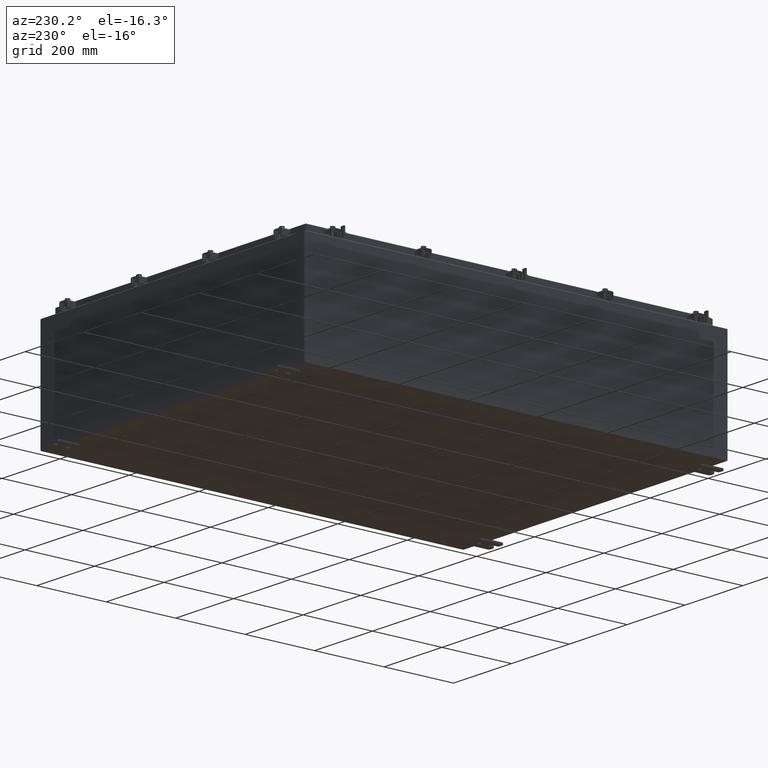
[diagram: clean part render]
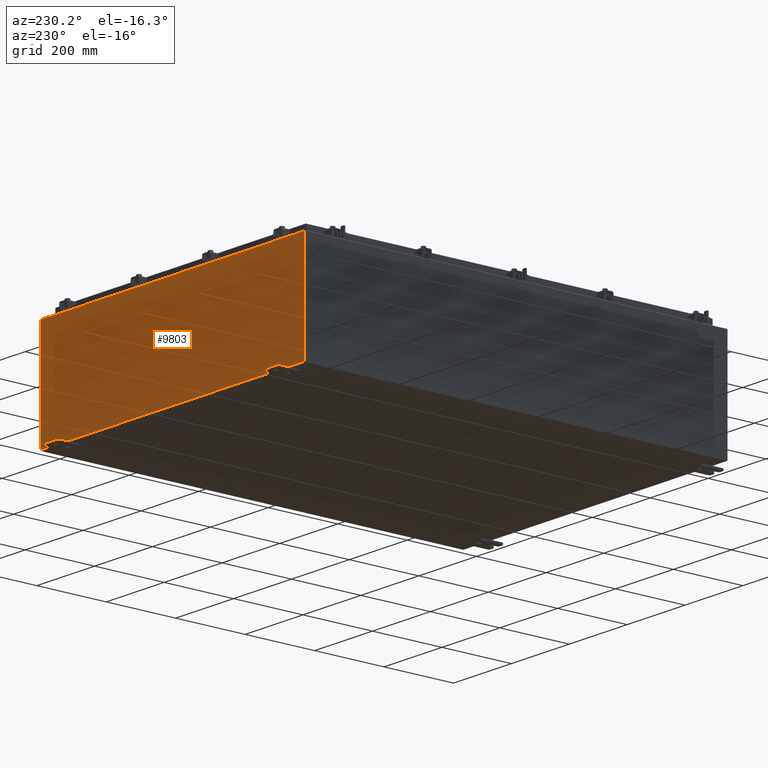
[diagram: same view with one face highlighted and labeled with its STEP entity id]
A machine part, auxiliary view. The second image highlights one B-rep face of the part: STEP entity #9803.
In plain terms, the highlighted planar face has unit normal (0, -1, 0).
Its self-contained STEP definition (entity closure, byte-faithful):
#366 = VECTOR ( 'NONE', #7278, 39.37007874015748100 ) ;
#612 = CARTESIAN_POINT ( 'NONE',  ( 16.65587500000000500, 0.0000000000000000000, 5.874949999999999200 ) ) ;
#710 = ORIENTED_EDGE ( 'NONE', *, *, #8746, .F. ) ;
#727 = DIRECTION ( 'NONE',  ( 0.0000000000000000000, 0.0000000000000000000, -1.000000000000000000 ) ) ;
#1106 = ORIENTED_EDGE ( 'NONE', *, *, #13340, .T. ) ;
#1410 = CARTESIAN_POINT ( 'NONE',  ( 17.92530000000000400, 0.0000000000000000000, -5.925300000000000000 ) ) ;
#1528 = CARTESIAN_POINT ( 'NONE',  ( -16.63720000000000000, -0.0000000000000000000, 5.874949999999999200 ) ) ;
#1589 = ORIENTED_EDGE ( 'NONE', *, *, #11027, .F. ) ;
#1881 = VECTOR ( 'NONE', #6784, 39.37007874015748100 ) ;
#2208 = EDGE_CURVE ( 'NONE', #23707, #24026, #16465, .T. ) ;
#2252 = DIRECTION ( 'NONE',  ( 0.0000000000000000000, 0.0000000000000000000, 1.000000000000000000 ) ) ;
#2704 = LINE ( 'NONE', #13110, #24450 ) ;
#2745 = DIRECTION ( 'NONE',  ( 0.0000000000000000000, 0.0000000000000000000, -1.000000000000000000 ) ) ;
#2846 = FACE_OUTER_BOUND ( 'NONE', #23994, .T. ) ;
#2865 = LINE ( 'NONE', #24416, #24620 ) ;
#3194 = DIRECTION ( 'NONE',  ( -0.0000000000000000000, 1.000000000000000000, -0.0000000000000000000 ) ) ;
#3524 = LINE ( 'NONE', #14888, #25238 ) ;
#4284 = CARTESIAN_POINT ( 'NONE',  ( -16.65587499999999800, 0.0000000000000000000, 5.874949999999999200 ) ) ;
#4611 = CARTESIAN_POINT ( 'NONE',  ( -17.92529999999999600, 0.0000000000000000000, 5.925299999999999100 ) ) ;
#4743 = DIRECTION ( 'NONE',  ( 1.000000000000000000, 0.0000000000000000000, 3.048036009064577000E-017 ) ) ;
#4830 = CARTESIAN_POINT ( 'NONE',  ( 16.63720000000000400, 0.0000000000000000000, 5.912299999999999200 ) ) ;
#4842 = CARTESIAN_POINT ( 'NONE',  ( 17.92530000000000400, 0.0000000000000000000, 5.925300000000000000 ) ) ;
#4887 = VECTOR ( 'NONE', #25931, 39.37007874015748100 ) ;
#4944 = LINE ( 'NONE', #7329, #9880 ) ;
#5199 = DIRECTION ( 'NONE',  ( 0.0000000000000000000, 0.0000000000000000000, 1.000000000000000000 ) ) ;
#5450 = VECTOR ( 'NONE', #20959, 39.37007874015748100 ) ;
#5677 = VERTEX_POINT ( 'NONE', #6756 ) ;
#6038 = LINE ( 'NONE', #19755, #366 ) ;
#6185 = CARTESIAN_POINT ( 'NONE',  ( -17.92529999999999600, 0.0000000000000000000, 5.925299999999999100 ) ) ;
#6491 = EDGE_CURVE ( 'NONE', #19774, #22085, #6038, .T. ) ;
#6531 = DIRECTION ( 'NONE',  ( 0.0000000000000000000, -0.0000000000000000000, -1.000000000000000000 ) ) ;
#6756 = CARTESIAN_POINT ( 'NONE',  ( 16.67455000000000400, 0.0000000000000000000, 5.874949999999999200 ) ) ;
#6784 = DIRECTION ( 'NONE',  ( -0.0000000000000000000, -0.0000000000000000000, 1.000000000000000000 ) ) ;
#7039 = LINE ( 'NONE', #15667, #17555 ) ;
#7278 = DIRECTION ( 'NONE',  ( 0.0000000000000000000, 0.0000000000000000000, -1.000000000000000000 ) ) ;
#7329 = CARTESIAN_POINT ( 'NONE',  ( 16.63720000000000400, 0.0000000000000000000, 0.0000000000000000000 ) ) ;
#7693 = LINE ( 'NONE', #24097, #18226 ) ;
#8146 = CARTESIAN_POINT ( 'NONE',  ( 16.67454999999949500, -0.0000000000000000000, -1.447541957108302900E-012 ) ) ;
#8304 = AXIS2_PLACEMENT_3D ( 'NONE', #23234, #19085, #6531 ) ;
#8746 = EDGE_CURVE ( 'NONE', #13276, #5677, #21995, .T. ) ;
#8777 = VERTEX_POINT ( 'NONE', #21815 ) ;
#9010 = VERTEX_POINT ( 'NONE', #26596 ) ;
#9287 = ORIENTED_EDGE ( 'NONE', *, *, #2208, .F. ) ;
#9791 = EDGE_CURVE ( 'NONE', #24026, #9959, #3524, .T. ) ;
#9803 = ADVANCED_FACE ( 'NONE', ( #2846 ), #16989, .F. ) ;
#9880 = VECTOR ( 'NONE', #5199, 39.37007874015748100 ) ;
#9959 = VERTEX_POINT ( 'NONE', #17349 ) ;
#10706 = ORIENTED_EDGE ( 'NONE', *, *, #21965, .F. ) ;
#11013 = LINE ( 'NONE', #6185, #5450 ) ;
#11027 = EDGE_CURVE ( 'NONE', #5677, #27168, #15348, .T. ) ;
#11306 = ORIENTED_EDGE ( 'NONE', *, *, #23331, .T. ) ;
#11503 = DIRECTION ( 'NONE',  ( 0.0000000000000000000, 0.0000000000000000000, -1.000000000000000000 ) ) ;
#11506 = EDGE_CURVE ( 'NONE', #13276, #19774, #11013, .T. ) ;
#11562 = CARTESIAN_POINT ( 'NONE',  ( -16.67455000000000000, 0.0000000000000000000, 5.874949999999999200 ) ) ;
#11796 = DIRECTION ( 'NONE',  ( 1.000000000000000000, 0.0000000000000000000, 0.0000000000000000000 ) ) ;
#12788 = ORIENTED_EDGE ( 'NONE', *, *, #25148, .T. ) ;
#13110 = CARTESIAN_POINT ( 'NONE',  ( -17.92529999999999600, 0.0000000000000000000, 5.925299999999999100 ) ) ;
#13247 = AXIS2_PLACEMENT_3D ( 'NONE', #612, #15368, #2745 ) ;
#13276 = VERTEX_POINT ( 'NONE', #18321 ) ;
#13340 = EDGE_CURVE ( 'NONE', #22085, #20943, #7693, .T. ) ;
#13616 = ORIENTED_EDGE ( 'NONE', *, *, #18625, .T. ) ;
#13886 = VERTEX_POINT ( 'NONE', #4830 ) ;
#14246 = ORIENTED_EDGE ( 'NONE', *, *, #6491, .T. ) ;
#14888 = CARTESIAN_POINT ( 'NONE',  ( -16.67455000000000000, -0.0000000000000000000, 0.0000000000000000000 ) ) ;
#15348 = CIRCLE ( 'NONE', #13247, 0.01867499999999949400 ) ;
#15368 = DIRECTION ( 'NONE',  ( -0.0000000000000000000, 1.000000000000000000, -0.0000000000000000000 ) ) ;
#15667 = CARTESIAN_POINT ( 'NONE',  ( -16.63720000000000000, -0.0000000000000000000, 0.0000000000000000000 ) ) ;
#16465 = CIRCLE ( 'NONE', #23862, 0.01867499999999949400 ) ;
#16793 = CARTESIAN_POINT ( 'NONE',  ( 16.63720000000000400, 0.0000000000000000000, 5.874949999999999200 ) ) ;
#16871 = EDGE_CURVE ( 'NONE', #27168, #13886, #4944, .T. ) ;
#16989 = PLANE ( 'NONE',  #8304 ) ;
#17136 = CARTESIAN_POINT ( 'NONE',  ( -17.92529999999999600, 0.0000000000000000000, -5.925300000000000000 ) ) ;
#17349 = CARTESIAN_POINT ( 'NONE',  ( -16.67455000000000000, 0.0000000000000000000, 5.925299999999999100 ) ) ;
#17555 = VECTOR ( 'NONE', #11503, 39.37007874015748100 ) ;
#17744 = ORIENTED_EDGE ( 'NONE', *, *, #9791, .F. ) ;
#18226 = VECTOR ( 'NONE', #26191, 39.37007874015748100 ) ;
#18321 = CARTESIAN_POINT ( 'NONE',  ( 16.67455000000000700, 0.0000000000000000000, 5.925300000000000000 ) ) ;
#18625 = EDGE_CURVE ( 'NONE', #8777, #13886, #2865, .T. ) ;
#18664 = LINE ( 'NONE', #4611, #1881 ) ;
#19085 = DIRECTION ( 'NONE',  ( 0.0000000000000000000, -1.000000000000000000, 0.0000000000000000000 ) ) ;
#19755 = CARTESIAN_POINT ( 'NONE',  ( 17.92530000000000400, 0.0000000000000000000, 5.925300000000000000 ) ) ;
#19774 = VERTEX_POINT ( 'NONE', #4842 ) ;
#20943 = VERTEX_POINT ( 'NONE', #17136 ) ;
#20959 = DIRECTION ( 'NONE',  ( 1.000000000000000000, 0.0000000000000000000, 3.048036009064577000E-017 ) ) ;
#21815 = CARTESIAN_POINT ( 'NONE',  ( -16.63720000000000000, 3.756290991288361700E-016, 5.912299999999999200 ) ) ;
#21965 = EDGE_CURVE ( 'NONE', #8777, #23707, #7039, .T. ) ;
#21995 = LINE ( 'NONE', #8146, #4887 ) ;
#22085 = VERTEX_POINT ( 'NONE', #1410 ) ;
#23234 = CARTESIAN_POINT ( 'NONE',  ( 0.0000000000000000000, 0.0000000000000000000, 0.0000000000000000000 ) ) ;
#23331 = EDGE_CURVE ( 'NONE', #9010, #9959, #2704, .T. ) ;
#23707 = VERTEX_POINT ( 'NONE', #1528 ) ;
#23719 = ORIENTED_EDGE ( 'NONE', *, *, #16871, .F. ) ;
#23862 = AXIS2_PLACEMENT_3D ( 'NONE', #4284, #3194, #727 ) ;
#23994 = EDGE_LOOP ( 'NONE', ( #17744, #9287, #10706, #13616, #23719, #1589, #710, #27063, #14246, #1106, #12788, #11306 ) ) ;
#24026 = VERTEX_POINT ( 'NONE', #11562 ) ;
#24097 = CARTESIAN_POINT ( 'NONE',  ( -17.92529999999999600, 0.0000000000000000000, -5.925300000000000000 ) ) ;
#24416 = CARTESIAN_POINT ( 'NONE',  ( -16.63720000000000000, 3.756290991288361700E-016, 5.912299999999999200 ) ) ;
#24450 = VECTOR ( 'NONE', #4743, 39.37007874015748100 ) ;
#24620 = VECTOR ( 'NONE', #11796, 39.37007874015748100 ) ;
#25148 = EDGE_CURVE ( 'NONE', #20943, #9010, #18664, .T. ) ;
#25238 = VECTOR ( 'NONE', #2252, 39.37007874015748100 ) ;
#25931 = DIRECTION ( 'NONE',  ( -8.681145560799821800E-014, 0.0000000000000000000, -1.000000000000000000 ) ) ;
#26191 = DIRECTION ( 'NONE',  ( -1.000000000000000000, -0.0000000000000000000, -0.0000000000000000000 ) ) ;
#26596 = CARTESIAN_POINT ( 'NONE',  ( -17.92529999999999600, 0.0000000000000000000, 5.925299999999999100 ) ) ;
#27063 = ORIENTED_EDGE ( 'NONE', *, *, #11506, .T. ) ;
#27168 = VERTEX_POINT ( 'NONE', #16793 ) ;